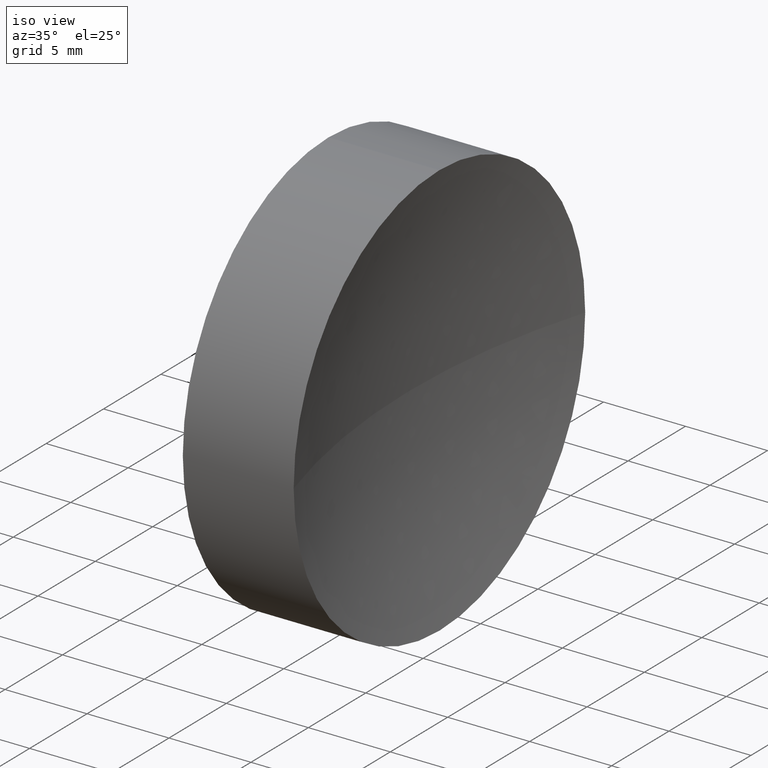
[diagram: clean part render]
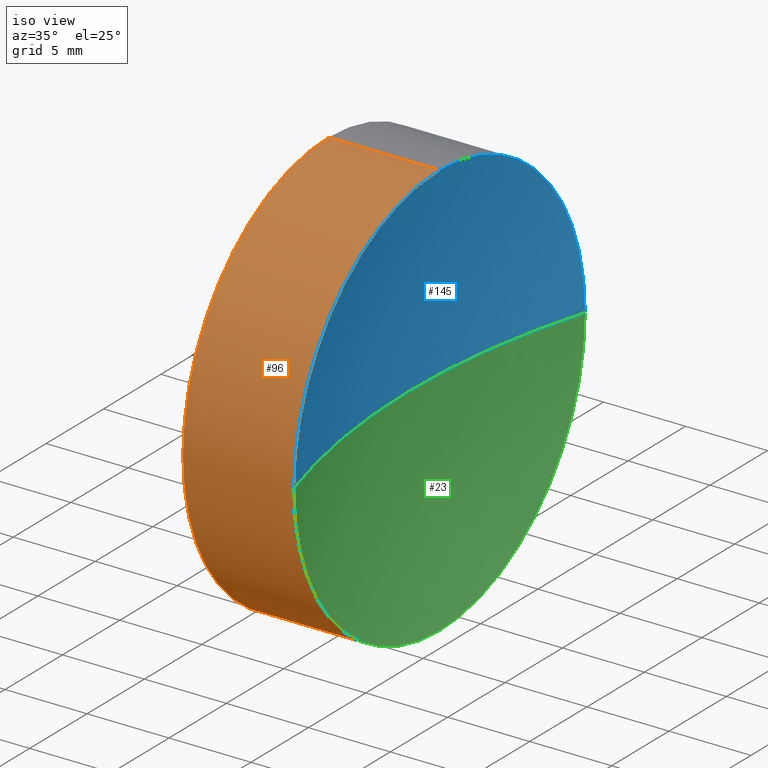
[diagram: same view with three faces highlighted in distinct colors, each labeled with its STEP entity id]
A machine part, iso view with three faces highlighted in distinct colors.
Their STEP definitions:

[orange] entity #96 — the highlighted cylindrical surface (partial cylindrical patch) has radius 12.7 mm, axis along (-1, -0, -0).
#4 = DIRECTION ( 'NONE',  ( 0.0000000000000000000, 0.0000000000000000000, 1.000000000000000000 ) ) ;
#6 = VERTEX_POINT ( 'NONE', #122 ) ;
#7 = DIRECTION ( 'NONE',  ( -1.000000000000000000, -0.0000000000000000000, -0.0000000000000000000 ) ) ;
#11 = ORIENTED_EDGE ( 'NONE', *, *, #29, .F. ) ;
#12 = VECTOR ( 'NONE', #146, 1000.000000000000000 ) ;
#19 = CYLINDRICAL_SURFACE ( 'NONE', #64, 12.69999999999999600 ) ;
#20 = CARTESIAN_POINT ( 'NONE',  ( 84.89972222827364600, 52.17808229838991700, 0.0000000000000000000 ) ) ;
#26 = DIRECTION ( 'NONE',  ( -1.000000000000000000, -0.0000000000000000000, -0.0000000000000000000 ) ) ;
#27 = CIRCLE ( 'NONE', #36, 12.69999999999999600 ) ;
#28 = CIRCLE ( 'NONE', #51, 12.69999999999999600 ) ;
#29 = EDGE_CURVE ( 'NONE', #6, #82, #27, .T. ) ;
#30 = LINE ( 'NONE', #131, #216 ) ;
#31 = VERTEX_POINT ( 'NONE', #110 ) ;
#33 = EDGE_CURVE ( 'NONE', #34, #31, #166, .T. ) ;
#34 = VERTEX_POINT ( 'NONE', #130 ) ;
#36 = AXIS2_PLACEMENT_3D ( 'NONE', #182, #69, #201 ) ;
#43 = DIRECTION ( 'NONE',  ( -1.000000000000000000, -0.0000000000000000000, -0.0000000000000000000 ) ) ;
#45 = DIRECTION ( 'NONE',  ( -1.000000000000000000, -0.0000000000000000000, -0.0000000000000000000 ) ) ;
#51 = AXIS2_PLACEMENT_3D ( 'NONE', #152, #43, #154 ) ;
#54 = LINE ( 'NONE', #70, #12 ) ;
#61 = AXIS2_PLACEMENT_3D ( 'NONE', #150, #7, #124 ) ;
#62 = ORIENTED_EDGE ( 'NONE', *, *, #191, .F. ) ;
#64 = AXIS2_PLACEMENT_3D ( 'NONE', #20, #200, #4 ) ;
#66 = VERTEX_POINT ( 'NONE', #185 ) ;
#69 = DIRECTION ( 'NONE',  ( -1.000000000000000000, -0.0000000000000000000, -0.0000000000000000000 ) ) ;
#70 = CARTESIAN_POINT ( 'NONE',  ( 84.89972222827364600, 52.17808229838991700, 12.69999999999999600 ) ) ;
#73 = FACE_OUTER_BOUND ( 'NONE', #107, .T. ) ;
#82 = VERTEX_POINT ( 'NONE', #97 ) ;
#87 = ORIENTED_EDGE ( 'NONE', *, *, #141, .T. ) ;
#96 = ADVANCED_FACE ( 'NONE', ( #73 ), #19, .T. ) ;
#97 = CARTESIAN_POINT ( 'NONE',  ( 92.70881702839177800, 52.17808229838991700, 12.69999999999999600 ) ) ;
#98 = CARTESIAN_POINT ( 'NONE',  ( 92.70881702839177800, 52.17808229838991700, 0.0000000000000000000 ) ) ;
#107 = EDGE_LOOP ( 'NONE', ( #62, #123, #184, #87, #11, #208 ) ) ;
#110 = CARTESIAN_POINT ( 'NONE',  ( 99.47207090832816300, 52.17808229838991700, 12.69999999999999600 ) ) ;
#114 = DIRECTION ( 'NONE',  ( 0.0000000000000000000, 0.0000000000000000000, 1.000000000000000000 ) ) ;
#122 = CARTESIAN_POINT ( 'NONE',  ( 92.70881702839179200, 39.47808229838992800, -1.555301434917137200E-015 ) ) ;
#123 = ORIENTED_EDGE ( 'NONE', *, *, #158, .T. ) ;
#124 = DIRECTION ( 'NONE',  ( 0.0000000000000000000, 0.0000000000000000000, 1.000000000000000000 ) ) ;
#126 = CIRCLE ( 'NONE', #193, 12.69999999999999600 ) ;
#130 = CARTESIAN_POINT ( 'NONE',  ( 99.47207090832816300, 39.47808229838992800, 0.0000000000000000000 ) ) ;
#131 = CARTESIAN_POINT ( 'NONE',  ( 84.89972222827364600, 52.17808229838991700, -12.69999999999999600 ) ) ;
#141 = EDGE_CURVE ( 'NONE', #31, #82, #54, .T. ) ;
#146 = DIRECTION ( 'NONE',  ( -1.000000000000000000, -0.0000000000000000000, -0.0000000000000000000 ) ) ;
#150 = CARTESIAN_POINT ( 'NONE',  ( 99.47207090832816300, 52.17808229838991700, 0.0000000000000000000 ) ) ;
#152 = CARTESIAN_POINT ( 'NONE',  ( 99.47207090832816300, 52.17808229838991700, 0.0000000000000000000 ) ) ;
#154 = DIRECTION ( 'NONE',  ( 0.0000000000000000000, 0.0000000000000000000, 1.000000000000000000 ) ) ;
#158 = EDGE_CURVE ( 'NONE', #231, #34, #28, .T. ) ;
#166 = CIRCLE ( 'NONE', #61, 12.69999999999999600 ) ;
#182 = CARTESIAN_POINT ( 'NONE',  ( 92.70881702839177800, 52.17808229838991700, 0.0000000000000000000 ) ) ;
#184 = ORIENTED_EDGE ( 'NONE', *, *, #33, .T. ) ;
#185 = CARTESIAN_POINT ( 'NONE',  ( 92.70881702839177800, 52.17808229838991700, -12.69999999999999600 ) ) ;
#187 = CARTESIAN_POINT ( 'NONE',  ( 99.47207090832816300, 52.17808229838991700, -12.69999999999999600 ) ) ;
#191 = EDGE_CURVE ( 'NONE', #231, #66, #30, .T. ) ;
#193 = AXIS2_PLACEMENT_3D ( 'NONE', #98, #45, #114 ) ;
#200 = DIRECTION ( 'NONE',  ( -1.000000000000000000, -0.0000000000000000000, -0.0000000000000000000 ) ) ;
#201 = DIRECTION ( 'NONE',  ( 0.0000000000000000000, 0.0000000000000000000, 1.000000000000000000 ) ) ;
#208 = ORIENTED_EDGE ( 'NONE', *, *, #211, .F. ) ;
#211 = EDGE_CURVE ( 'NONE', #66, #6, #126, .T. ) ;
#216 = VECTOR ( 'NONE', #26, 1000.000000000000000 ) ;
#231 = VERTEX_POINT ( 'NONE', #187 ) ;

[blue] entity #145 — the highlighted spherical surface has radius 43.8 mm.
#7 = DIRECTION ( 'NONE',  ( -1.000000000000000000, -0.0000000000000000000, -0.0000000000000000000 ) ) ;
#15 = AXIS2_PLACEMENT_3D ( 'NONE', #218, #92, #108 ) ;
#25 = EDGE_CURVE ( 'NONE', #31, #38, #207, .T. ) ;
#31 = VERTEX_POINT ( 'NONE', #110 ) ;
#33 = EDGE_CURVE ( 'NONE', #34, #31, #166, .T. ) ;
#34 = VERTEX_POINT ( 'NONE', #130 ) ;
#38 = VERTEX_POINT ( 'NONE', #40 ) ;
#40 = CARTESIAN_POINT ( 'NONE',  ( 99.47207090832816300, 64.87808229838989900, 1.555301434917137200E-015 ) ) ;
#41 = CARTESIAN_POINT ( 'NONE',  ( 99.47207090832816300, 52.17808229838991700, 0.0000000000000000000 ) ) ;
#44 = DIRECTION ( 'NONE',  ( 0.0000000000000000000, 0.0000000000000000000, 1.000000000000000000 ) ) ;
#48 = EDGE_CURVE ( 'NONE', #38, #181, #183, .T. ) ;
#56 = ORIENTED_EDGE ( 'NONE', *, *, #195, .T. ) ;
#58 = DIRECTION ( 'NONE',  ( 0.0000000000000000000, -1.000000000000000000, 0.0000000000000000000 ) ) ;
#61 = AXIS2_PLACEMENT_3D ( 'NONE', #150, #7, #124 ) ;
#72 = FACE_OUTER_BOUND ( 'NONE', #139, .T. ) ;
#85 = AXIS2_PLACEMENT_3D ( 'NONE', #111, #100, #155 ) ;
#89 = ORIENTED_EDGE ( 'NONE', *, *, #25, .F. ) ;
#92 = DIRECTION ( 'NONE',  ( 0.0000000000000000000, -1.224646799147353200E-016, 1.000000000000000000 ) ) ;
#95 = DIRECTION ( 'NONE',  ( -1.000000000000000000, -0.0000000000000000000, -0.0000000000000000000 ) ) ;
#100 = DIRECTION ( 'NONE',  ( 0.0000000000000000000, 0.0000000000000000000, -1.000000000000000000 ) ) ;
#108 = DIRECTION ( 'NONE',  ( 0.0000000000000000000, -1.000000000000000000, -1.224646799147353200E-016 ) ) ;
#110 = CARTESIAN_POINT ( 'NONE',  ( 99.47207090832816300, 52.17808229838991700, 12.69999999999999600 ) ) ;
#111 = CARTESIAN_POINT ( 'NONE',  ( 141.3904439683599600, 52.17808229838991700, 0.0000000000000000000 ) ) ;
#113 = DIRECTION ( 'NONE',  ( 0.0000000000000000000, 0.0000000000000000000, 1.000000000000000000 ) ) ;
#120 = AXIS2_PLACEMENT_3D ( 'NONE', #189, #44, #58 ) ;
#124 = DIRECTION ( 'NONE',  ( 0.0000000000000000000, 0.0000000000000000000, 1.000000000000000000 ) ) ;
#130 = CARTESIAN_POINT ( 'NONE',  ( 99.47207090832816300, 39.47808229838992800, 0.0000000000000000000 ) ) ;
#138 = SPHERICAL_SURFACE ( 'NONE', #120, 43.79999999999998300 ) ;
#139 = EDGE_LOOP ( 'NONE', ( #148, #89, #175, #56 ) ) ;
#145 = ADVANCED_FACE ( 'NONE', ( #72 ), #138, .F. ) ;
#148 = ORIENTED_EDGE ( 'NONE', *, *, #48, .F. ) ;
#150 = CARTESIAN_POINT ( 'NONE',  ( 99.47207090832816300, 52.17808229838991700, 0.0000000000000000000 ) ) ;
#155 = DIRECTION ( 'NONE',  ( -1.000000000000000000, 0.0000000000000000000, 0.0000000000000000000 ) ) ;
#166 = CIRCLE ( 'NONE', #61, 12.69999999999999600 ) ;
#170 = CARTESIAN_POINT ( 'NONE',  ( 97.59044396835997800, 52.17808229838991700, 0.0000000000000000000 ) ) ;
#175 = ORIENTED_EDGE ( 'NONE', *, *, #33, .F. ) ;
#181 = VERTEX_POINT ( 'NONE', #170 ) ;
#183 = CIRCLE ( 'NONE', #15, 43.79999999999998300 ) ;
#189 = CARTESIAN_POINT ( 'NONE',  ( 141.3904439683599600, 52.17808229838991700, 0.0000000000000000000 ) ) ;
#195 = EDGE_CURVE ( 'NONE', #34, #181, #210, .T. ) ;
#203 = AXIS2_PLACEMENT_3D ( 'NONE', #41, #95, #113 ) ;
#207 = CIRCLE ( 'NONE', #203, 12.69999999999999600 ) ;
#210 = CIRCLE ( 'NONE', #85, 43.79999999999997600 ) ;
#218 = CARTESIAN_POINT ( 'NONE',  ( 141.3904439683599600, 52.17808229838991700, 0.0000000000000000000 ) ) ;

[green] entity #23 — the highlighted spherical surface has radius 43.8 mm.
#13 = ORIENTED_EDGE ( 'NONE', *, *, #195, .F. ) ;
#15 = AXIS2_PLACEMENT_3D ( 'NONE', #218, #92, #108 ) ;
#17 = ORIENTED_EDGE ( 'NONE', *, *, #217, .F. ) ;
#21 = DIRECTION ( 'NONE',  ( 0.0000000000000000000, 0.0000000000000000000, 1.000000000000000000 ) ) ;
#23 = ADVANCED_FACE ( 'NONE', ( #162 ), #119, .F. ) ;
#28 = CIRCLE ( 'NONE', #51, 12.69999999999999600 ) ;
#34 = VERTEX_POINT ( 'NONE', #130 ) ;
#38 = VERTEX_POINT ( 'NONE', #40 ) ;
#40 = CARTESIAN_POINT ( 'NONE',  ( 99.47207090832816300, 64.87808229838989900, 1.555301434917137200E-015 ) ) ;
#43 = DIRECTION ( 'NONE',  ( -1.000000000000000000, -0.0000000000000000000, -0.0000000000000000000 ) ) ;
#48 = EDGE_CURVE ( 'NONE', #38, #181, #183, .T. ) ;
#51 = AXIS2_PLACEMENT_3D ( 'NONE', #152, #43, #154 ) ;
#57 = DIRECTION ( 'NONE',  ( 0.0000000000000000000, -1.000000000000000000, 0.0000000000000000000 ) ) ;
#85 = AXIS2_PLACEMENT_3D ( 'NONE', #111, #100, #155 ) ;
#92 = DIRECTION ( 'NONE',  ( 0.0000000000000000000, -1.224646799147353200E-016, 1.000000000000000000 ) ) ;
#100 = DIRECTION ( 'NONE',  ( 0.0000000000000000000, 0.0000000000000000000, -1.000000000000000000 ) ) ;
#102 = ORIENTED_EDGE ( 'NONE', *, *, #158, .F. ) ;
#108 = DIRECTION ( 'NONE',  ( 0.0000000000000000000, -1.000000000000000000, -1.224646799147353200E-016 ) ) ;
#111 = CARTESIAN_POINT ( 'NONE',  ( 141.3904439683599600, 52.17808229838991700, 0.0000000000000000000 ) ) ;
#119 = SPHERICAL_SURFACE ( 'NONE', #179, 43.79999999999998300 ) ;
#130 = CARTESIAN_POINT ( 'NONE',  ( 99.47207090832816300, 39.47808229838992800, 0.0000000000000000000 ) ) ;
#132 = EDGE_LOOP ( 'NONE', ( #17, #137, #13, #102 ) ) ;
#137 = ORIENTED_EDGE ( 'NONE', *, *, #48, .T. ) ;
#152 = CARTESIAN_POINT ( 'NONE',  ( 99.47207090832816300, 52.17808229838991700, 0.0000000000000000000 ) ) ;
#154 = DIRECTION ( 'NONE',  ( 0.0000000000000000000, 0.0000000000000000000, 1.000000000000000000 ) ) ;
#155 = DIRECTION ( 'NONE',  ( -1.000000000000000000, 0.0000000000000000000, 0.0000000000000000000 ) ) ;
#158 = EDGE_CURVE ( 'NONE', #231, #34, #28, .T. ) ;
#162 = FACE_OUTER_BOUND ( 'NONE', #132, .T. ) ;
#170 = CARTESIAN_POINT ( 'NONE',  ( 97.59044396835997800, 52.17808229838991700, 0.0000000000000000000 ) ) ;
#177 = CIRCLE ( 'NONE', #227, 12.69999999999999600 ) ;
#179 = AXIS2_PLACEMENT_3D ( 'NONE', #194, #21, #57 ) ;
#181 = VERTEX_POINT ( 'NONE', #170 ) ;
#183 = CIRCLE ( 'NONE', #15, 43.79999999999998300 ) ;
#187 = CARTESIAN_POINT ( 'NONE',  ( 99.47207090832816300, 52.17808229838991700, -12.69999999999999600 ) ) ;
#194 = CARTESIAN_POINT ( 'NONE',  ( 141.3904439683599600, 52.17808229838991700, 0.0000000000000000000 ) ) ;
#195 = EDGE_CURVE ( 'NONE', #34, #181, #210, .T. ) ;
#202 = DIRECTION ( 'NONE',  ( 0.0000000000000000000, 0.0000000000000000000, 1.000000000000000000 ) ) ;
#210 = CIRCLE ( 'NONE', #85, 43.79999999999997600 ) ;
#217 = EDGE_CURVE ( 'NONE', #38, #231, #177, .T. ) ;
#218 = CARTESIAN_POINT ( 'NONE',  ( 141.3904439683599600, 52.17808229838991700, 0.0000000000000000000 ) ) ;
#223 = CARTESIAN_POINT ( 'NONE',  ( 99.47207090832816300, 52.17808229838991700, 0.0000000000000000000 ) ) ;
#224 = DIRECTION ( 'NONE',  ( -1.000000000000000000, -0.0000000000000000000, -0.0000000000000000000 ) ) ;
#227 = AXIS2_PLACEMENT_3D ( 'NONE', #223, #224, #202 ) ;
#231 = VERTEX_POINT ( 'NONE', #187 ) ;